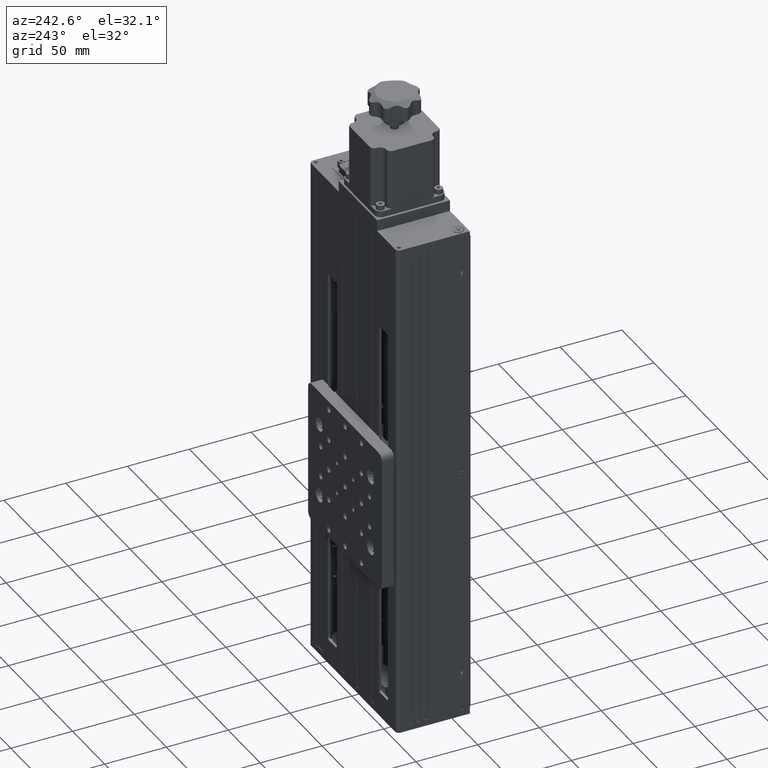
[diagram: clean part render]
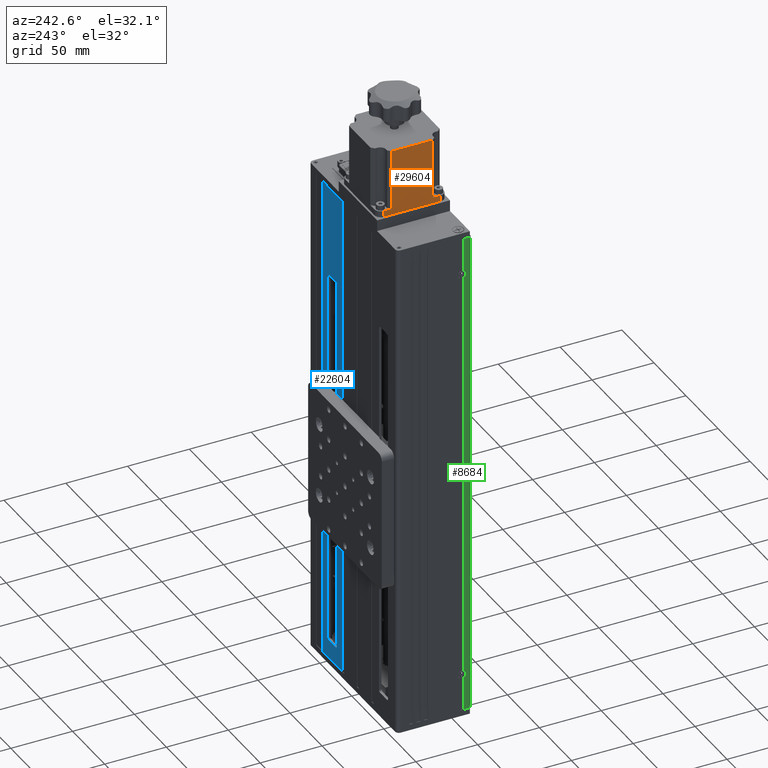
[diagram: same view with three faces highlighted in distinct colors, each labeled with its STEP entity id]
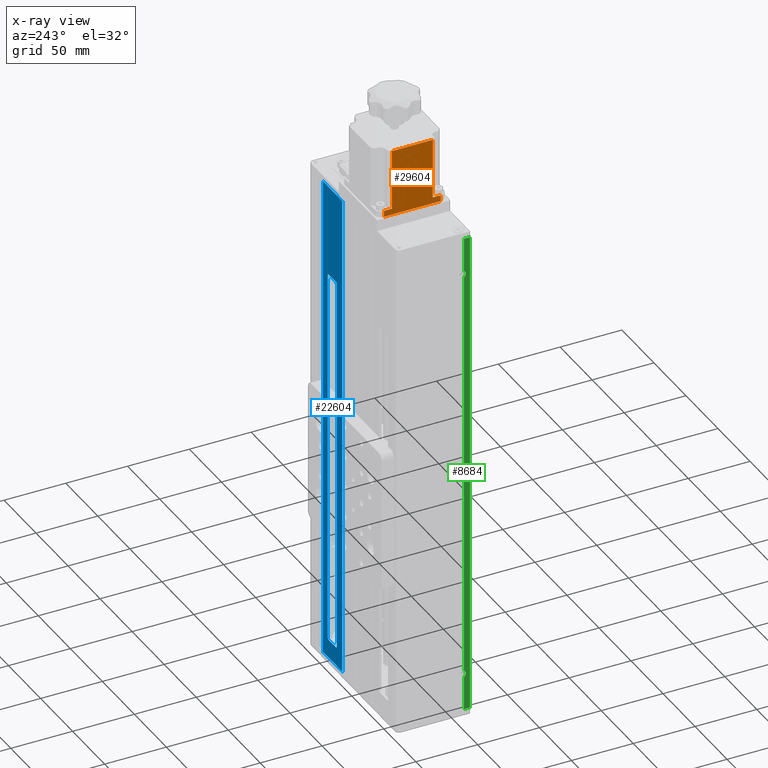
[diagram: x-ray of the same camera — body ghosted, the three highlighted faces saturated]
A machine part, auxiliary view with three faces highlighted in distinct colors.
The next image is the same camera in x-ray (body ghosted, the three faces saturated) — at least one of them is partly hidden behind the body in this view.
Their STEP definitions:

[orange] entity #29604 — the highlighted planar face has unit normal (1, 0, 0).
#578 = LINE ( 'NONE', #31718, #42611 ) ;
#1517 = CARTESIAN_POINT ( 'NONE',  ( -38.28011670107467500, -2.104423987207598000, 150.7392992934879300 ) ) ;
#1671 = VERTEX_POINT ( 'NONE', #22403 ) ;
#2173 = EDGE_CURVE ( 'NONE', #2464, #7970, #35333, .T. ) ;
#2464 = VERTEX_POINT ( 'NONE', #14309 ) ;
#2788 = CARTESIAN_POINT ( 'NONE',  ( -38.28011670107467500, 48.89557601279239000, 155.7392992934879300 ) ) ;
#3036 = CARTESIAN_POINT ( 'NONE',  ( -38.28011670107467500, -2.104423987207598000, 155.7392992934879300 ) ) ;
#3254 = LINE ( 'NONE', #10048, #12300 ) ;
#3265 = ORIENTED_EDGE ( 'NONE', *, *, #31395, .T. ) ;
#3525 = DIRECTION ( 'NONE',  ( -0.0000000000000000000, 0.0000000000000000000, 1.000000000000000000 ) ) ;
#4691 = DIRECTION ( 'NONE',  ( -1.110223024625156500E-016, 1.000000000000000000, 0.0000000000000000000 ) ) ;
#6088 = VECTOR ( 'NONE', #39365, 1000.000000000000000 ) ;
#6220 = VERTEX_POINT ( 'NONE', #26386 ) ;
#7970 = VERTEX_POINT ( 'NONE', #3036 ) ;
#8239 = LINE ( 'NONE', #14308, #38536 ) ;
#8359 = PLANE ( 'NONE',  #13685 ) ;
#8516 = DIRECTION ( 'NONE',  ( 1.000000000000000000, 1.110223024625156500E-016, 0.0000000000000000000 ) ) ;
#8741 = EDGE_LOOP ( 'NONE', ( #14591, #11055, #21619, #3265, #35266, #27702, #11446, #26431 ) ) ;
#8795 = LINE ( 'NONE', #2788, #43903 ) ;
#9739 = VECTOR ( 'NONE', #3525, 1000.000000000000000 ) ;
#10048 = CARTESIAN_POINT ( 'NONE',  ( -38.28011670107467500, 43.89557601279238200, 150.7392992934879300 ) ) ;
#10691 = DIRECTION ( 'NONE',  ( -1.110223024625156500E-016, 1.000000000000000000, 0.0000000000000000000 ) ) ;
#11055 = ORIENTED_EDGE ( 'NONE', *, *, #31636, .T. ) ;
#11268 = EDGE_CURVE ( 'NONE', #7970, #34659, #578, .T. ) ;
#11446 = ORIENTED_EDGE ( 'NONE', *, *, #32766, .F. ) ;
#12300 = VECTOR ( 'NONE', #30389, 1000.000000000000000 ) ;
#13685 = AXIS2_PLACEMENT_3D ( 'NONE', #28848, #8516, #32251 ) ;
#13800 = CARTESIAN_POINT ( 'NONE',  ( -38.28011670107467500, 43.89557601279238200, 150.7392992934879300 ) ) ;
#14168 = CARTESIAN_POINT ( 'NONE',  ( -38.28011670107467500, 4.325576012792414100, 155.7392992934879300 ) ) ;
#14308 = CARTESIAN_POINT ( 'NONE',  ( -38.28011670107467500, 48.89557601279239000, 204.5392992934879400 ) ) ;
#14309 = CARTESIAN_POINT ( 'NONE',  ( -38.28011670107467500, -2.104423987207598000, 150.7392992934879300 ) ) ;
#14591 = ORIENTED_EDGE ( 'NONE', *, *, #11268, .T. ) ;
#15096 = LINE ( 'NONE', #35918, #6088 ) ;
#18727 = VERTEX_POINT ( 'NONE', #13800 ) ;
#19258 = VERTEX_POINT ( 'NONE', #40798 ) ;
#21619 = ORIENTED_EDGE ( 'NONE', *, *, #44133, .T. ) ;
#22403 = CARTESIAN_POINT ( 'NONE',  ( -38.28011670107467500, 37.46557601279239000, 204.5392992934879400 ) ) ;
#22826 = EDGE_CURVE ( 'NONE', #19258, #6220, #8795, .T. ) ;
#23081 = CARTESIAN_POINT ( 'NONE',  ( -38.28011670107467500, 4.325576012792414100, 204.5392992934879400 ) ) ;
#25316 = DIRECTION ( 'NONE',  ( -0.0000000000000000000, 0.0000000000000000000, 1.000000000000000000 ) ) ;
#25574 = VERTEX_POINT ( 'NONE', #23081 ) ;
#26011 = LINE ( 'NONE', #34475, #33948 ) ;
#26386 = CARTESIAN_POINT ( 'NONE',  ( -38.28011670107468900, 43.89557601279238200, 155.7392992934879300 ) ) ;
#26431 = ORIENTED_EDGE ( 'NONE', *, *, #2173, .T. ) ;
#27702 = ORIENTED_EDGE ( 'NONE', *, *, #37200, .T. ) ;
#27959 = DIRECTION ( 'NONE',  ( -1.110223024625156500E-016, 1.000000000000000000, 0.0000000000000000000 ) ) ;
#28848 = CARTESIAN_POINT ( 'NONE',  ( -38.28011670107467500, 48.89557601279239000, 150.7392992934879300 ) ) ;
#29604 = ADVANCED_FACE ( 'NONE', ( #37699 ), #8359, .F. ) ;
#30389 = DIRECTION ( 'NONE',  ( 0.0000000000000000000, -0.0000000000000000000, -1.000000000000000000 ) ) ;
#31395 = EDGE_CURVE ( 'NONE', #1671, #19258, #15096, .T. ) ;
#31636 = EDGE_CURVE ( 'NONE', #34659, #25574, #40068, .T. ) ;
#31718 = CARTESIAN_POINT ( 'NONE',  ( -38.28011670107467500, 48.89557601279239000, 155.7392992934879300 ) ) ;
#32251 = DIRECTION ( 'NONE',  ( 0.0000000000000000000, 0.0000000000000000000, -1.000000000000000000 ) ) ;
#32766 = EDGE_CURVE ( 'NONE', #2464, #18727, #26011, .T. ) ;
#33379 = DIRECTION ( 'NONE',  ( -1.110223024625156500E-016, 1.000000000000000000, 0.0000000000000000000 ) ) ;
#33948 = VECTOR ( 'NONE', #10691, 1000.000000000000000 ) ;
#34285 = VECTOR ( 'NONE', #25316, 1000.000000000000000 ) ;
#34475 = CARTESIAN_POINT ( 'NONE',  ( -38.28011670107467500, 48.89557601279239000, 150.7392992934879300 ) ) ;
#34659 = VERTEX_POINT ( 'NONE', #14168 ) ;
#35266 = ORIENTED_EDGE ( 'NONE', *, *, #22826, .T. ) ;
#35333 = LINE ( 'NONE', #1517, #34285 ) ;
#35918 = CARTESIAN_POINT ( 'NONE',  ( -38.28011670107467500, 37.46557601279239000, 155.7392992934879300 ) ) ;
#37200 = EDGE_CURVE ( 'NONE', #6220, #18727, #3254, .T. ) ;
#37342 = CARTESIAN_POINT ( 'NONE',  ( -38.28011670107467500, 4.325576012792414100, 150.7392992934879300 ) ) ;
#37699 = FACE_OUTER_BOUND ( 'NONE', #8741, .T. ) ;
#38536 = VECTOR ( 'NONE', #27959, 1000.000000000000000 ) ;
#39365 = DIRECTION ( 'NONE',  ( 0.0000000000000000000, 0.0000000000000000000, -1.000000000000000000 ) ) ;
#40068 = LINE ( 'NONE', #37342, #9739 ) ;
#40798 = CARTESIAN_POINT ( 'NONE',  ( -38.28011670107467500, 37.46557601279239000, 155.7392992934879300 ) ) ;
#42611 = VECTOR ( 'NONE', #4691, 1000.000000000000000 ) ;
#43903 = VECTOR ( 'NONE', #33379, 1000.000000000000000 ) ;
#44133 = EDGE_CURVE ( 'NONE', #25574, #1671, #8239, .T. ) ;

[blue] entity #22604 — the highlighted planar face has unit normal (0, 1, 0).
#746 = ORIENTED_EDGE ( 'NONE', *, *, #9496, .F. ) ;
#936 = DIRECTION ( 'NONE',  ( 1.000000000000000000, 0.0000000000000000000, 0.0000000000000000000 ) ) ;
#942 = EDGE_CURVE ( 'NONE', #27792, #2233, #14180, .T. ) ;
#951 = FACE_OUTER_BOUND ( 'NONE', #14664, .T. ) ;
#1068 = DIRECTION ( 'NONE',  ( 0.0000000000000000000, 0.0000000000000000000, 1.000000000000000000 ) ) ;
#1200 = ORIENTED_EDGE ( 'NONE', *, *, #942, .F. ) ;
#1419 = VECTOR ( 'NONE', #18250, 1000.000000000000000 ) ;
#2233 = VERTEX_POINT ( 'NONE', #22510 ) ;
#2507 = EDGE_CURVE ( 'NONE', #4109, #26888, #4432, .T. ) ;
#2927 = ORIENTED_EDGE ( 'NONE', *, *, #31669, .F. ) ;
#4109 = VERTEX_POINT ( 'NONE', #39689 ) ;
#4242 = CARTESIAN_POINT ( 'NONE',  ( 35.21988329892535300, 50.39557601279239000, -245.7607007065121000 ) ) ;
#4432 = CIRCLE ( 'NONE', #34668, 1.500000000000001300 ) ;
#4680 = CARTESIAN_POINT ( 'NONE',  ( 44.21988329892534600, 50.39557601279239000, 136.7392992934879000 ) ) ;
#4687 = ORIENTED_EDGE ( 'NONE', *, *, #35282, .F. ) ;
#4729 = ORIENTED_EDGE ( 'NONE', *, *, #9049, .T. ) ;
#5015 = CARTESIAN_POINT ( 'NONE',  ( 14.21988329892534600, 50.39557601279239000, 136.7392992934879000 ) ) ;
#5120 = ORIENTED_EDGE ( 'NONE', *, *, #37420, .T. ) ;
#5134 = VECTOR ( 'NONE', #23326, 1000.000000000000000 ) ;
#7285 = LINE ( 'NONE', #31758, #1419 ) ;
#7594 = CARTESIAN_POINT ( 'NONE',  ( 44.21988329892534600, 50.39557601279239000, 136.7392992934879000 ) ) ;
#7627 = DIRECTION ( 'NONE',  ( 0.0000000000000000000, 0.0000000000000000000, 1.000000000000000000 ) ) ;
#7811 = ORIENTED_EDGE ( 'NONE', *, *, #42428, .T. ) ;
#8198 = VERTEX_POINT ( 'NONE', #41032 ) ;
#8288 = VECTOR ( 'NONE', #33545, 1000.000000000000000 ) ;
#8446 = DIRECTION ( 'NONE',  ( 0.0000000000000000000, -0.0000000000000000000, 1.000000000000000000 ) ) ;
#9049 = EDGE_CURVE ( 'NONE', #38113, #39701, #36524, .T. ) ;
#9496 = EDGE_CURVE ( 'NONE', #8198, #39701, #16285, .T. ) ;
#9802 = CARTESIAN_POINT ( 'NONE',  ( 36.71988329892535300, 50.39557601279239000, 61.23929929348789600 ) ) ;
#9880 = VERTEX_POINT ( 'NONE', #35881 ) ;
#10227 = CARTESIAN_POINT ( 'NONE',  ( 24.21988329892535300, 50.39557601279239000, -247.2607007065121000 ) ) ;
#12618 = DIRECTION ( 'NONE',  ( -0.0000000000000000000, -0.0000000000000000000, -1.000000000000000000 ) ) ;
#13092 = CARTESIAN_POINT ( 'NONE',  ( 22.71988329892535300, 50.39557601279239000, -245.7607007065121000 ) ) ;
#13758 = CIRCLE ( 'NONE', #16715, 1.500000000000001300 ) ;
#13835 = CARTESIAN_POINT ( 'NONE',  ( 24.21988329892535300, 50.39557601279239000, -245.7607007065121000 ) ) ;
#14163 = LINE ( 'NONE', #36792, #5134 ) ;
#14180 = LINE ( 'NONE', #33086, #32232 ) ;
#14664 = EDGE_LOOP ( 'NONE', ( #4687, #25617, #32625, #5120 ) ) ;
#16179 = CARTESIAN_POINT ( 'NONE',  ( 14.21988329892534600, 50.39557601279239000, 136.7392992934879000 ) ) ;
#16267 = VECTOR ( 'NONE', #936, 1000.000000000000000 ) ;
#16285 = LINE ( 'NONE', #43842, #8288 ) ;
#16715 = AXIS2_PLACEMENT_3D ( 'NONE', #4242, #27969, #7627 ) ;
#16812 = CARTESIAN_POINT ( 'NONE',  ( 35.21988329892535300, 50.39557601279239000, 62.73929929348789600 ) ) ;
#16859 = EDGE_CURVE ( 'NONE', #38113, #26888, #14163, .T. ) ;
#17272 = DIRECTION ( 'NONE',  ( 0.0000000000000000000, 0.0000000000000000000, 1.000000000000000000 ) ) ;
#17317 = ORIENTED_EDGE ( 'NONE', *, *, #26988, .T. ) ;
#18037 = CARTESIAN_POINT ( 'NONE',  ( 14.21988329892534600, 50.39557601279239000, 136.7392992934879000 ) ) ;
#18250 = DIRECTION ( 'NONE',  ( 1.000000000000000000, 0.0000000000000000000, 0.0000000000000000000 ) ) ;
#19353 = AXIS2_PLACEMENT_3D ( 'NONE', #13835, #37571, #17272 ) ;
#19833 = CARTESIAN_POINT ( 'NONE',  ( 14.21988329892534600, 50.39557601279239000, 136.7392992934879000 ) ) ;
#19990 = VERTEX_POINT ( 'NONE', #7594 ) ;
#20209 = CARTESIAN_POINT ( 'NONE',  ( 35.21988329892535300, 50.39557601279239000, 61.23929929348789600 ) ) ;
#20830 = CIRCLE ( 'NONE', #22206, 1.500000000000001300 ) ;
#21460 = DIRECTION ( 'NONE',  ( -0.0000000000000000000, -1.000000000000000000, -0.0000000000000000000 ) ) ;
#22206 = AXIS2_PLACEMENT_3D ( 'NONE', #20209, #44022, #23631 ) ;
#22510 = CARTESIAN_POINT ( 'NONE',  ( 36.71988329892535300, 50.39557601279239000, -245.7607007065121000 ) ) ;
#22539 = EDGE_LOOP ( 'NONE', ( #40274, #4729, #746, #17317, #1200, #7811, #2927, #24385 ) ) ;
#22604 = ADVANCED_FACE ( 'NONE', ( #37065, #951 ), #28630, .T. ) ;
#23326 = DIRECTION ( 'NONE',  ( 0.0000000000000000000, 0.0000000000000000000, 1.000000000000000000 ) ) ;
#23631 = DIRECTION ( 'NONE',  ( 0.0000000000000000000, 0.0000000000000000000, 1.000000000000000000 ) ) ;
#23934 = VECTOR ( 'NONE', #42265, 1000.000000000000000 ) ;
#23987 = CARTESIAN_POINT ( 'NONE',  ( 22.71988329892535300, 50.39557601279239000, 61.23929929348789600 ) ) ;
#24047 = LINE ( 'NONE', #27432, #41052 ) ;
#24385 = ORIENTED_EDGE ( 'NONE', *, *, #2507, .T. ) ;
#25617 = ORIENTED_EDGE ( 'NONE', *, *, #40642, .F. ) ;
#26888 = VERTEX_POINT ( 'NONE', #23987 ) ;
#26988 = EDGE_CURVE ( 'NONE', #8198, #2233, #13758, .T. ) ;
#27432 = CARTESIAN_POINT ( 'NONE',  ( 22.71988329892535300, 50.39557601279239000, 62.73929929348789600 ) ) ;
#27792 = VERTEX_POINT ( 'NONE', #9802 ) ;
#27969 = DIRECTION ( 'NONE',  ( -0.0000000000000000000, -1.000000000000000000, -0.0000000000000000000 ) ) ;
#28630 = PLANE ( 'NONE',  #35211 ) ;
#28786 = DIRECTION ( 'NONE',  ( 0.0000000000000000000, 1.000000000000000000, 0.0000000000000000000 ) ) ;
#30694 = EDGE_CURVE ( 'NONE', #31496, #19990, #42305, .T. ) ;
#30845 = DIRECTION ( 'NONE',  ( 1.000000000000000000, 0.0000000000000000000, 0.0000000000000000000 ) ) ;
#31496 = VERTEX_POINT ( 'NONE', #16179 ) ;
#31542 = VERTEX_POINT ( 'NONE', #36915 ) ;
#31669 = EDGE_CURVE ( 'NONE', #4109, #40868, #24047, .T. ) ;
#31758 = CARTESIAN_POINT ( 'NONE',  ( 14.21988329892534600, 50.39557601279239000, -262.2607007065120700 ) ) ;
#32232 = VECTOR ( 'NONE', #12618, 1000.000000000000000 ) ;
#32625 = ORIENTED_EDGE ( 'NONE', *, *, #30694, .T. ) ;
#33086 = CARTESIAN_POINT ( 'NONE',  ( 36.71988329892535300, 50.39557601279239000, -247.2607007065121000 ) ) ;
#33545 = DIRECTION ( 'NONE',  ( -1.000000000000000000, -0.0000000000000000000, -0.0000000000000000000 ) ) ;
#34668 = AXIS2_PLACEMENT_3D ( 'NONE', #41782, #21460, #1068 ) ;
#35211 = AXIS2_PLACEMENT_3D ( 'NONE', #5015, #28786, #8446 ) ;
#35282 = EDGE_CURVE ( 'NONE', #9880, #31542, #7285, .T. ) ;
#35881 = CARTESIAN_POINT ( 'NONE',  ( 14.21988329892534600, 50.39557601279239000, -262.2607007065120700 ) ) ;
#35971 = VECTOR ( 'NONE', #40207, 1000.000000000000000 ) ;
#36524 = CIRCLE ( 'NONE', #19353, 1.500000000000001300 ) ;
#36792 = CARTESIAN_POINT ( 'NONE',  ( 22.71988329892535300, 50.39557601279239000, -247.2607007065121000 ) ) ;
#36915 = CARTESIAN_POINT ( 'NONE',  ( 44.21988329892534600, 50.39557601279239000, -262.2607007065120700 ) ) ;
#37002 = LINE ( 'NONE', #19833, #35971 ) ;
#37065 = FACE_BOUND ( 'NONE', #22539, .T. ) ;
#37420 = EDGE_CURVE ( 'NONE', #19990, #31542, #42001, .T. ) ;
#37571 = DIRECTION ( 'NONE',  ( -0.0000000000000000000, -1.000000000000000000, -0.0000000000000000000 ) ) ;
#38113 = VERTEX_POINT ( 'NONE', #13092 ) ;
#39689 = CARTESIAN_POINT ( 'NONE',  ( 24.21988329892535300, 50.39557601279239000, 62.73929929348789600 ) ) ;
#39701 = VERTEX_POINT ( 'NONE', #10227 ) ;
#40207 = DIRECTION ( 'NONE',  ( -0.0000000000000000000, -0.0000000000000000000, -1.000000000000000000 ) ) ;
#40274 = ORIENTED_EDGE ( 'NONE', *, *, #16859, .F. ) ;
#40642 = EDGE_CURVE ( 'NONE', #31496, #9880, #37002, .T. ) ;
#40868 = VERTEX_POINT ( 'NONE', #16812 ) ;
#41032 = CARTESIAN_POINT ( 'NONE',  ( 35.21988329892535300, 50.39557601279239000, -247.2607007065121000 ) ) ;
#41052 = VECTOR ( 'NONE', #30845, 1000.000000000000000 ) ;
#41782 = CARTESIAN_POINT ( 'NONE',  ( 24.21988329892535300, 50.39557601279239000, 61.23929929348789600 ) ) ;
#42001 = LINE ( 'NONE', #4680, #23934 ) ;
#42265 = DIRECTION ( 'NONE',  ( -0.0000000000000000000, -0.0000000000000000000, -1.000000000000000000 ) ) ;
#42305 = LINE ( 'NONE', #18037, #16267 ) ;
#42428 = EDGE_CURVE ( 'NONE', #27792, #40868, #20830, .T. ) ;
#43842 = CARTESIAN_POINT ( 'NONE',  ( 22.71988329892535300, 50.39557601279239000, -247.2607007065121000 ) ) ;
#44022 = DIRECTION ( 'NONE',  ( -0.0000000000000000000, -1.000000000000000000, -0.0000000000000000000 ) ) ;

[green] entity #8684 — the highlighted planar face has unit normal (-1, 0, 0).
#415 = CARTESIAN_POINT ( 'NONE',  ( -71.28011670107466100, -3.854423987207620300, -229.6415405357703600 ) ) ;
#694 = EDGE_LOOP ( 'NONE', ( #2257, #43901, #36261, #15777, #17519, #41974, #12871, #3365, #15082, #39063 ) ) ;
#1172 = LINE ( 'NONE', #12399, #19269 ) ;
#1375 = DIRECTION ( 'NONE',  ( 0.0000000000000000000, 1.000000000000000000, 0.0000000000000000000 ) ) ;
#2257 = ORIENTED_EDGE ( 'NONE', *, *, #16922, .F. ) ;
#2336 = CIRCLE ( 'NONE', #8277, 3.149999999999999900 ) ;
#2358 = VERTEX_POINT ( 'NONE', #3481 ) ;
#2592 = VECTOR ( 'NONE', #1375, 1000.000000000000000 ) ;
#3365 = ORIENTED_EDGE ( 'NONE', *, *, #6671, .T. ) ;
#3481 = CARTESIAN_POINT ( 'NONE',  ( -71.28011670107466100, -3.854423987207624700, -262.2607007065120700 ) ) ;
#3868 = CARTESIAN_POINT ( 'NONE',  ( -71.28011670107466100, -2.104423987207666400, 106.7392992934879000 ) ) ;
#4027 = CARTESIAN_POINT ( 'NONE',  ( -71.28011670107466100, -3.854423987207624700, -60.14154053577036100 ) ) ;
#4333 = EDGE_CURVE ( 'NONE', #43138, #19211, #31169, .T. ) ;
#4386 = DIRECTION ( 'NONE',  ( -1.000000000000000000, 0.0000000000000000000, 0.0000000000000000000 ) ) ;
#4719 = VECTOR ( 'NONE', #11937, 1000.000000000000000 ) ;
#5910 = VERTEX_POINT ( 'NONE', #25733 ) ;
#6658 = DIRECTION ( 'NONE',  ( -1.000000000000000000, 0.0000000000000000000, 0.0000000000000000000 ) ) ;
#6671 = EDGE_CURVE ( 'NONE', #35075, #25182, #39024, .T. ) ;
#6941 = CARTESIAN_POINT ( 'NONE',  ( -71.28011670107466100, -3.854423987207624700, 136.7392992934879000 ) ) ;
#7267 = DIRECTION ( 'NONE',  ( 0.0000000000000000000, 0.0000000000000000000, 1.000000000000000000 ) ) ;
#8277 = AXIS2_PLACEMENT_3D ( 'NONE', #24724, #4386, #28129 ) ;
#8470 = FACE_OUTER_BOUND ( 'NONE', #694, .T. ) ;
#8684 = ADVANCED_FACE ( 'NONE', ( #8470 ), #24044, .T. ) ;
#9876 = EDGE_CURVE ( 'NONE', #18730, #5910, #12486, .T. ) ;
#10341 = CIRCLE ( 'NONE', #15924, 3.149999999999999900 ) ;
#11937 = DIRECTION ( 'NONE',  ( -0.0000000000000000000, -0.0000000000000000000, -1.000000000000000000 ) ) ;
#12126 = AXIS2_PLACEMENT_3D ( 'NONE', #27033, #6658, #30432 ) ;
#12225 = EDGE_CURVE ( 'NONE', #31596, #40941, #27084, .T. ) ;
#12399 = CARTESIAN_POINT ( 'NONE',  ( -71.28011670107466100, -8.604423987207624700, -262.2607007065120700 ) ) ;
#12486 = LINE ( 'NONE', #28904, #20436 ) ;
#12871 = ORIENTED_EDGE ( 'NONE', *, *, #28260, .F. ) ;
#13813 = CARTESIAN_POINT ( 'NONE',  ( -71.28011670107466100, -3.854423987207624700, -234.8798608772538900 ) ) ;
#14239 = CARTESIAN_POINT ( 'NONE',  ( -71.28011670107466100, -8.604423987207624700, 136.7392992934879000 ) ) ;
#15082 = ORIENTED_EDGE ( 'NONE', *, *, #19370, .F. ) ;
#15777 = ORIENTED_EDGE ( 'NONE', *, *, #9876, .F. ) ;
#15815 = DIRECTION ( 'NONE',  ( 0.0000000000000000000, 1.000000000000000000, 0.0000000000000000000 ) ) ;
#15924 = AXIS2_PLACEMENT_3D ( 'NONE', #3868, #27610, #7267 ) ;
#16079 = DIRECTION ( 'NONE',  ( -0.0000000000000000000, -0.0000000000000000000, -1.000000000000000000 ) ) ;
#16922 = EDGE_CURVE ( 'NONE', #25096, #40941, #27957, .T. ) ;
#16923 = CARTESIAN_POINT ( 'NONE',  ( -71.28011670107466100, -3.854423987207624700, -65.37986087725387600 ) ) ;
#16986 = LINE ( 'NONE', #25479, #4719 ) ;
#17519 = ORIENTED_EDGE ( 'NONE', *, *, #17744, .T. ) ;
#17680 = DIRECTION ( 'NONE',  ( 0.0000000000000000000, 0.0000000000000000000, 1.000000000000000000 ) ) ;
#17744 = EDGE_CURVE ( 'NONE', #18730, #43138, #30754, .T. ) ;
#18000 = EDGE_CURVE ( 'NONE', #25096, #2358, #16986, .T. ) ;
#18730 = VERTEX_POINT ( 'NONE', #40983 ) ;
#19211 = VERTEX_POINT ( 'NONE', #30255 ) ;
#19269 = VECTOR ( 'NONE', #15815, 1000.000000000000000 ) ;
#19370 = EDGE_CURVE ( 'NONE', #31596, #25182, #2336, .T. ) ;
#20436 = VECTOR ( 'NONE', #42458, 1000.000000000000000 ) ;
#22158 = VECTOR ( 'NONE', #44142, 1000.000000000000000 ) ;
#24044 = PLANE ( 'NONE',  #42404 ) ;
#24724 = CARTESIAN_POINT ( 'NONE',  ( -71.28011670107466100, -2.104423987207624700, -62.76070070651211800 ) ) ;
#25096 = VERTEX_POINT ( 'NONE', #13813 ) ;
#25182 = VERTEX_POINT ( 'NONE', #4027 ) ;
#25479 = CARTESIAN_POINT ( 'NONE',  ( -71.28011670107466100, -3.854423987207624700, 136.7392992934879000 ) ) ;
#25733 = CARTESIAN_POINT ( 'NONE',  ( -71.28011670107466100, -8.604423987207624700, -262.2607007065120700 ) ) ;
#27033 = CARTESIAN_POINT ( 'NONE',  ( -71.28011670107466100, -2.104423987207624700, -232.2607007065121300 ) ) ;
#27084 = LINE ( 'NONE', #32417, #44128 ) ;
#27610 = DIRECTION ( 'NONE',  ( -1.000000000000000000, 0.0000000000000000000, 0.0000000000000000000 ) ) ;
#27957 = CIRCLE ( 'NONE', #12126, 3.149999999999986100 ) ;
#28129 = DIRECTION ( 'NONE',  ( 0.0000000000000000000, 0.0000000000000000000, 1.000000000000000000 ) ) ;
#28260 = EDGE_CURVE ( 'NONE', #35075, #19211, #10341, .T. ) ;
#28904 = CARTESIAN_POINT ( 'NONE',  ( -71.28011670107466100, -8.604423987207624700, 136.7392992934879000 ) ) ;
#30255 = CARTESIAN_POINT ( 'NONE',  ( -71.28011670107466100, -3.854423987207620300, 109.3584594642297000 ) ) ;
#30432 = DIRECTION ( 'NONE',  ( 0.0000000000000000000, 0.0000000000000000000, 1.000000000000000000 ) ) ;
#30749 = CARTESIAN_POINT ( 'NONE',  ( -71.28011670107466100, -3.854423987207624700, 104.1201391227461200 ) ) ;
#30754 = LINE ( 'NONE', #42102, #2592 ) ;
#31051 = VECTOR ( 'NONE', #16079, 1000.000000000000000 ) ;
#31169 = LINE ( 'NONE', #6941, #22158 ) ;
#31596 = VERTEX_POINT ( 'NONE', #16923 ) ;
#32417 = CARTESIAN_POINT ( 'NONE',  ( -71.28011670107466100, -3.854423987207624700, 136.7392992934879000 ) ) ;
#32997 = CARTESIAN_POINT ( 'NONE',  ( -71.28011670107466100, -3.854423987207624700, 136.7392992934879000 ) ) ;
#35075 = VERTEX_POINT ( 'NONE', #30749 ) ;
#35833 = DIRECTION ( 'NONE',  ( -0.0000000000000000000, -0.0000000000000000000, -1.000000000000000000 ) ) ;
#36261 = ORIENTED_EDGE ( 'NONE', *, *, #41744, .F. ) ;
#37980 = DIRECTION ( 'NONE',  ( -1.000000000000000000, 0.0000000000000000000, 0.0000000000000000000 ) ) ;
#39024 = LINE ( 'NONE', #32997, #31051 ) ;
#39063 = ORIENTED_EDGE ( 'NONE', *, *, #12225, .T. ) ;
#40941 = VERTEX_POINT ( 'NONE', #415 ) ;
#40983 = CARTESIAN_POINT ( 'NONE',  ( -71.28011670107466100, -8.604423987207624700, 136.7392992934879000 ) ) ;
#41084 = CARTESIAN_POINT ( 'NONE',  ( -71.28011670107466100, -3.854423987207624700, 136.7392992934879000 ) ) ;
#41744 = EDGE_CURVE ( 'NONE', #5910, #2358, #1172, .T. ) ;
#41974 = ORIENTED_EDGE ( 'NONE', *, *, #4333, .T. ) ;
#42102 = CARTESIAN_POINT ( 'NONE',  ( -71.28011670107466100, -8.604423987207624700, 136.7392992934879000 ) ) ;
#42404 = AXIS2_PLACEMENT_3D ( 'NONE', #14239, #37980, #17680 ) ;
#42458 = DIRECTION ( 'NONE',  ( -0.0000000000000000000, -0.0000000000000000000, -1.000000000000000000 ) ) ;
#43138 = VERTEX_POINT ( 'NONE', #41084 ) ;
#43901 = ORIENTED_EDGE ( 'NONE', *, *, #18000, .T. ) ;
#44128 = VECTOR ( 'NONE', #35833, 1000.000000000000000 ) ;
#44142 = DIRECTION ( 'NONE',  ( -0.0000000000000000000, -0.0000000000000000000, -1.000000000000000000 ) ) ;